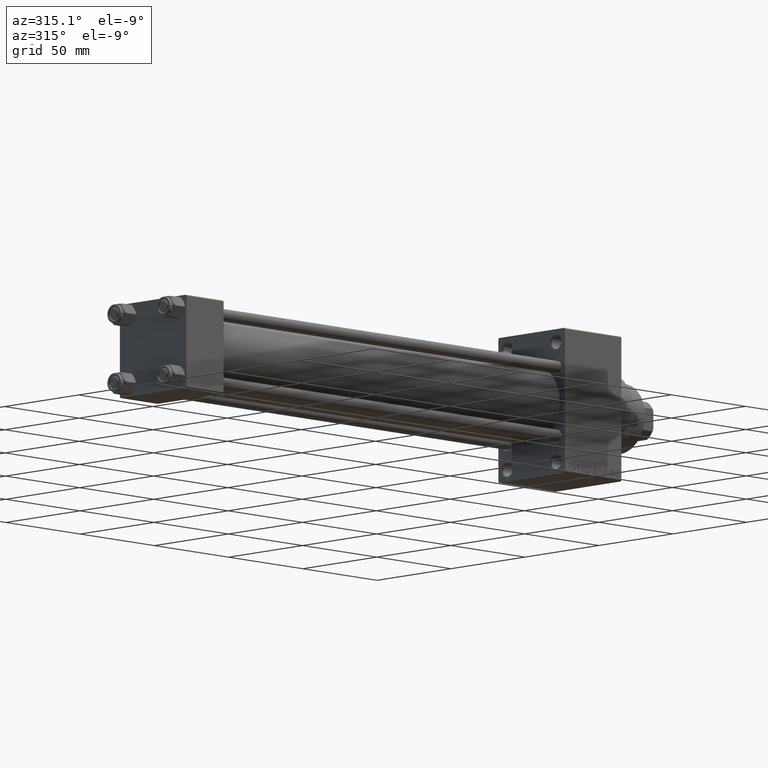
[diagram: clean part render]
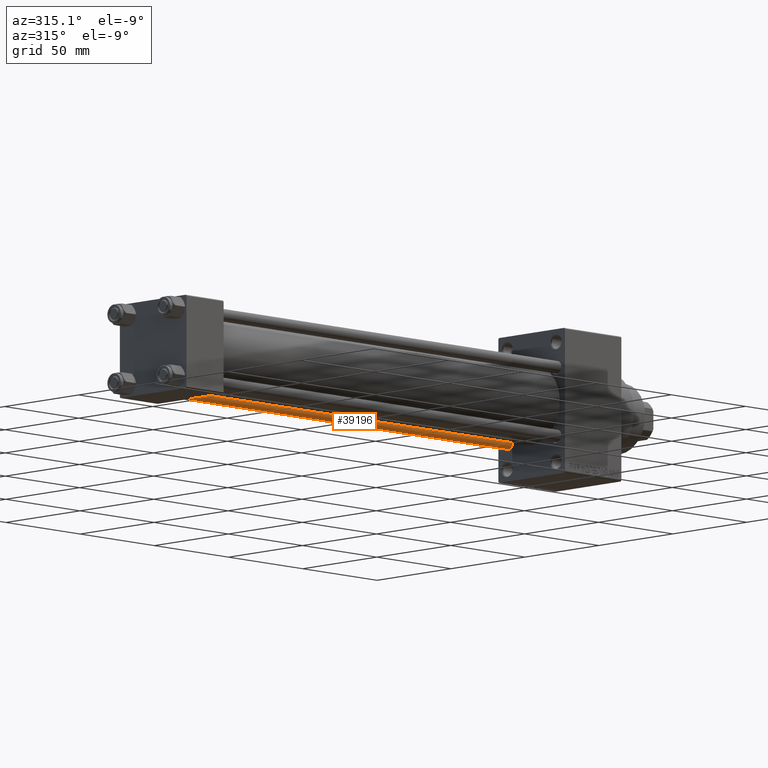
[diagram: same view with one face highlighted and labeled with its STEP entity id]
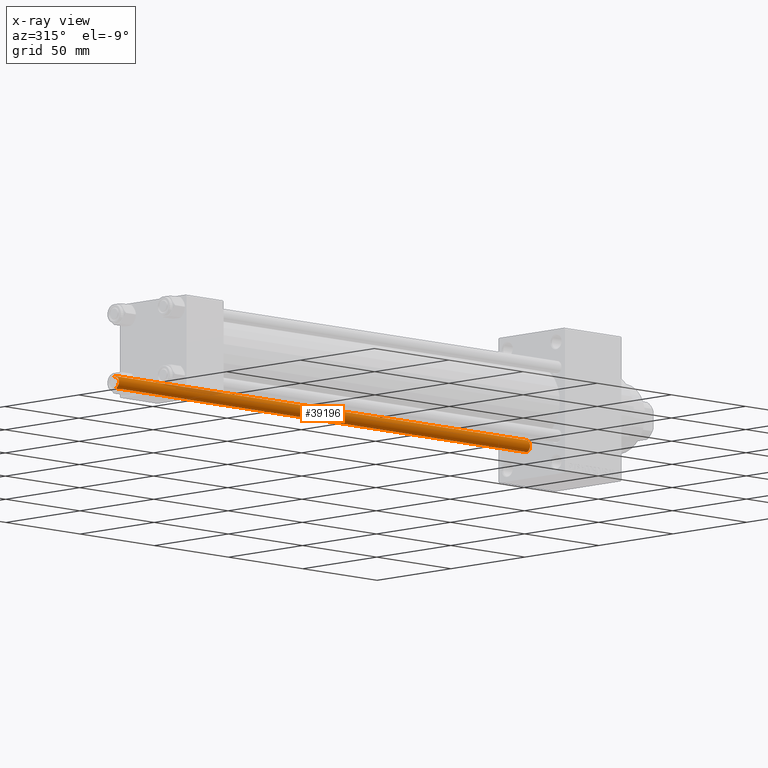
[diagram: x-ray of the same camera — body ghosted, the highlighted face saturated]
A machine part, auxiliary view. The second image highlights one B-rep face of the part: STEP entity #39196.
The next image is the same camera in x-ray: the body ghosted, the highlighted face saturated — about 4% of this face is hidden behind the body in this view.
In plain terms, the highlighted cylindrical surface (edge-blend (fillet) strip) has radius 3 mm, axis along (1, -0, 0).
Its self-contained STEP definition (entity closure, byte-faithful):
#3689 = ORIENTED_EDGE ( 'NONE', *, *, #13422, .T. ) ;
#4903 = VERTEX_POINT ( 'NONE', #15838 ) ;
#5044 = ORIENTED_EDGE ( 'NONE', *, *, #34041, .T. ) ;
#5543 = VERTEX_POINT ( 'NONE', #28698 ) ;
#5588 = FACE_OUTER_BOUND ( 'NONE', #15835, .T. ) ;
#7070 = CARTESIAN_POINT ( 'NONE',  ( 0.000000000000000000, 0.000000000000000000, 277.5000000000000568 ) ) ;
#8829 = CARTESIAN_POINT ( 'NONE',  ( 0.000000000000000000, 0.000000000000000000, 278.0000000000000000 ) ) ;
#9185 = VERTEX_POINT ( 'NONE', #15845 ) ;
#13063 = CARTESIAN_POINT ( 'NONE',  ( 3.000000000000000444, 3.673940397442060361E-16, 0.5000000000000559552 ) ) ;
#13422 = EDGE_CURVE ( 'NONE', #9185, #5543, #25691, .T. ) ;
#14811 = EDGE_CURVE ( 'NONE', #4903, #9185, #48579, .T. ) ;
#15835 = EDGE_LOOP ( 'NONE', ( #16317, #27889, #3689, #5044 ) ) ;
#15838 = CARTESIAN_POINT ( 'NONE',  ( 3.000000000000000444, 3.673940397442060361E-16, 277.5000000000000568 ) ) ;
#15845 = CARTESIAN_POINT ( 'NONE',  ( -3.000000000000000444, 0.000000000000000000, 277.5000000000000568 ) ) ;
#16317 = ORIENTED_EDGE ( 'NONE', *, *, #39050, .F. ) ;
#18782 = CIRCLE ( 'NONE', #30668, 3.000000000000000444 ) ;
#20341 = DIRECTION ( 'NONE',  ( 1.000000000000000000, 0.000000000000000000, 0.000000000000000000 ) ) ;
#20739 = DIRECTION ( 'NONE',  ( -0.000000000000000000, -0.000000000000000000, -1.000000000000000000 ) ) ;
#23093 = DIRECTION ( 'NONE',  ( -0.000000000000000000, -0.000000000000000000, 1.000000000000000000 ) ) ;
#25691 = LINE ( 'NONE', #33116, #38989 ) ;
#27712 = CYLINDRICAL_SURFACE ( 'NONE', #31514, 3.000000000000000444 ) ;
#27889 = ORIENTED_EDGE ( 'NONE', *, *, #14811, .T. ) ;
#28698 = CARTESIAN_POINT ( 'NONE',  ( -3.000000000000000444, 0.000000000000000000, 0.5000000000000559552 ) ) ;
#28718 = AXIS2_PLACEMENT_3D ( 'NONE', #7070, #29681, #44837 ) ;
#29681 = DIRECTION ( 'NONE',  ( 0.000000000000000000, 0.000000000000000000, -1.000000000000000000 ) ) ;
#30668 = AXIS2_PLACEMENT_3D ( 'NONE', #31517, #23093, #20341 ) ;
#31514 = AXIS2_PLACEMENT_3D ( 'NONE', #8829, #20739, #47072 ) ;
#31517 = CARTESIAN_POINT ( 'NONE',  ( 0.000000000000000000, 0.000000000000000000, 0.5000000000000559552 ) ) ;
#33116 = CARTESIAN_POINT ( 'NONE',  ( -3.000000000000000444, 0.000000000000000000, 278.0000000000000000 ) ) ;
#34041 = EDGE_CURVE ( 'NONE', #5543, #36178, #18782, .T. ) ;
#34406 = CARTESIAN_POINT ( 'NONE',  ( 3.000000000000000444, 3.673940397442060361E-16, 278.0000000000000000 ) ) ;
#36178 = VERTEX_POINT ( 'NONE', #13063 ) ;
#38989 = VECTOR ( 'NONE', #43815, 1000.000000000000000 ) ;
#39050 = EDGE_CURVE ( 'NONE', #4903, #36178, #41400, .T. ) ;
#39196 = ADVANCED_FACE ( 'NONE', ( #5588 ), #27712, .T. ) ;
#40252 = VECTOR ( 'NONE', #42120, 1000.000000000000000 ) ;
#41400 = LINE ( 'NONE', #34406, #40252 ) ;
#42120 = DIRECTION ( 'NONE',  ( -0.000000000000000000, -0.000000000000000000, -1.000000000000000000 ) ) ;
#43815 = DIRECTION ( 'NONE',  ( -0.000000000000000000, -0.000000000000000000, -1.000000000000000000 ) ) ;
#44837 = DIRECTION ( 'NONE',  ( 1.000000000000000000, 0.000000000000000000, 0.000000000000000000 ) ) ;
#47072 = DIRECTION ( 'NONE',  ( -1.000000000000000000, 0.000000000000000000, 0.000000000000000000 ) ) ;
#48579 = CIRCLE ( 'NONE', #28718, 3.000000000000000444 ) ;